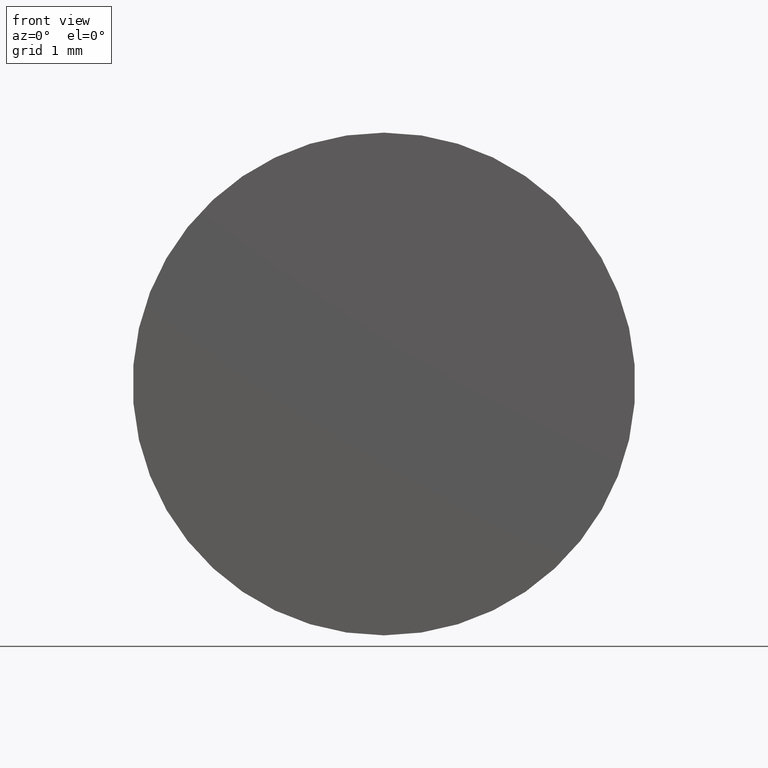
[diagram: clean part render]
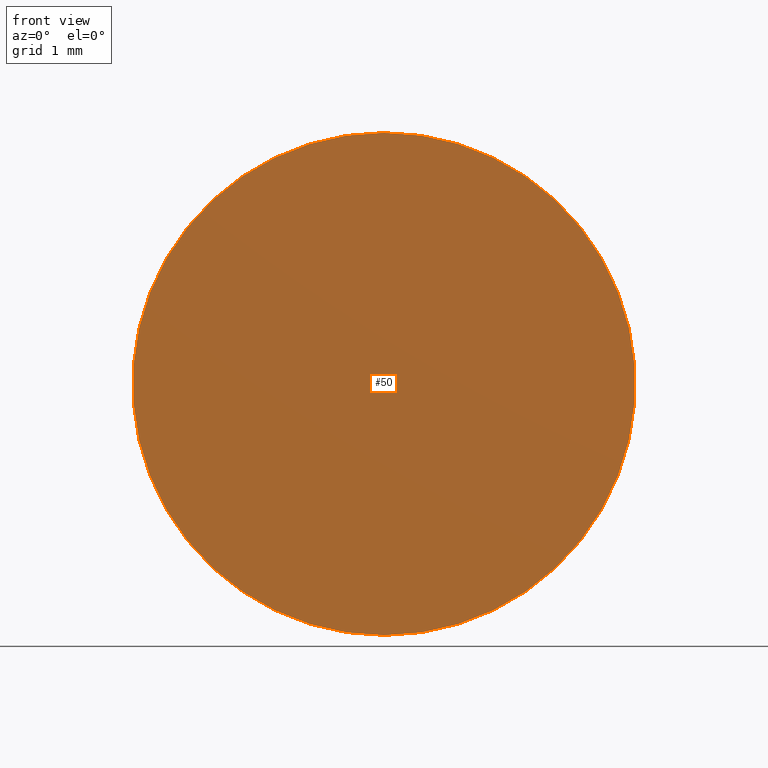
[diagram: same view with one face highlighted and labeled with its STEP entity id]
A machine part, front view. The second image highlights one B-rep face of the part: STEP entity #50.
In plain terms, the highlighted planar face has unit normal (-0, 1, 0).
Its self-contained STEP definition (entity closure, byte-faithful):
#9 = CARTESIAN_POINT ( 'NONE',  ( 0.000000000000000000, -4.336808689942017736E-16, 0.000000000000000000 ) ) ;
#21 = VERTEX_POINT ( 'NONE', #102 ) ;
#25 = DIRECTION ( 'NONE',  ( -0.000000000000000000, 1.000000000000000000, 0.000000000000000000 ) ) ;
#29 = DIRECTION ( 'NONE',  ( -0.000000000000000000, 1.000000000000000000, -0.000000000000000000 ) ) ;
#32 = EDGE_CURVE ( 'NONE', #115, #21, #96, .T. ) ;
#40 = CARTESIAN_POINT ( 'NONE',  ( 0.000000000000000000, -1.836970198721029934E-16, 0.000000000000000000 ) ) ;
#50 = ADVANCED_FACE ( 'NONE', ( #165 ), #177, .F. ) ;
#53 = EDGE_LOOP ( 'NONE', ( #116, #83 ) ) ;
#55 = DIRECTION ( 'NONE',  ( -0.000000000000000000, 1.000000000000000000, -0.000000000000000000 ) ) ;
#63 = CIRCLE ( 'NONE', #94, 3.000000000000000000 ) ;
#77 = CARTESIAN_POINT ( 'NONE',  ( 3.673940397442059868E-16, -4.336808689942017736E-16, -3.000000000000000000 ) ) ;
#83 = ORIENTED_EDGE ( 'NONE', *, *, #32, .F. ) ;
#90 = DIRECTION ( 'NONE',  ( 0.000000000000000000, 0.000000000000000000, 1.000000000000000000 ) ) ;
#94 = AXIS2_PLACEMENT_3D ( 'NONE', #118, #29, #90 ) ;
#96 = CIRCLE ( 'NONE', #111, 3.000000000000000000 ) ;
#101 = DIRECTION ( 'NONE',  ( 0.000000000000000000, 0.000000000000000000, 1.000000000000000000 ) ) ;
#102 = CARTESIAN_POINT ( 'NONE',  ( 0.000000000000000000, -4.336808689942017736E-16, 3.000000000000000000 ) ) ;
#111 = AXIS2_PLACEMENT_3D ( 'NONE', #9, #55, #148 ) ;
#115 = VERTEX_POINT ( 'NONE', #77 ) ;
#116 = ORIENTED_EDGE ( 'NONE', *, *, #193, .F. ) ;
#118 = CARTESIAN_POINT ( 'NONE',  ( 0.000000000000000000, -4.336808689942017736E-16, 0.000000000000000000 ) ) ;
#148 = DIRECTION ( 'NONE',  ( 0.000000000000000000, 0.000000000000000000, 1.000000000000000000 ) ) ;
#165 = FACE_OUTER_BOUND ( 'NONE', #53, .T. ) ;
#177 = PLANE ( 'NONE',  #189 ) ;
#189 = AXIS2_PLACEMENT_3D ( 'NONE', #40, #25, #101 ) ;
#193 = EDGE_CURVE ( 'NONE', #21, #115, #63, .T. ) ;